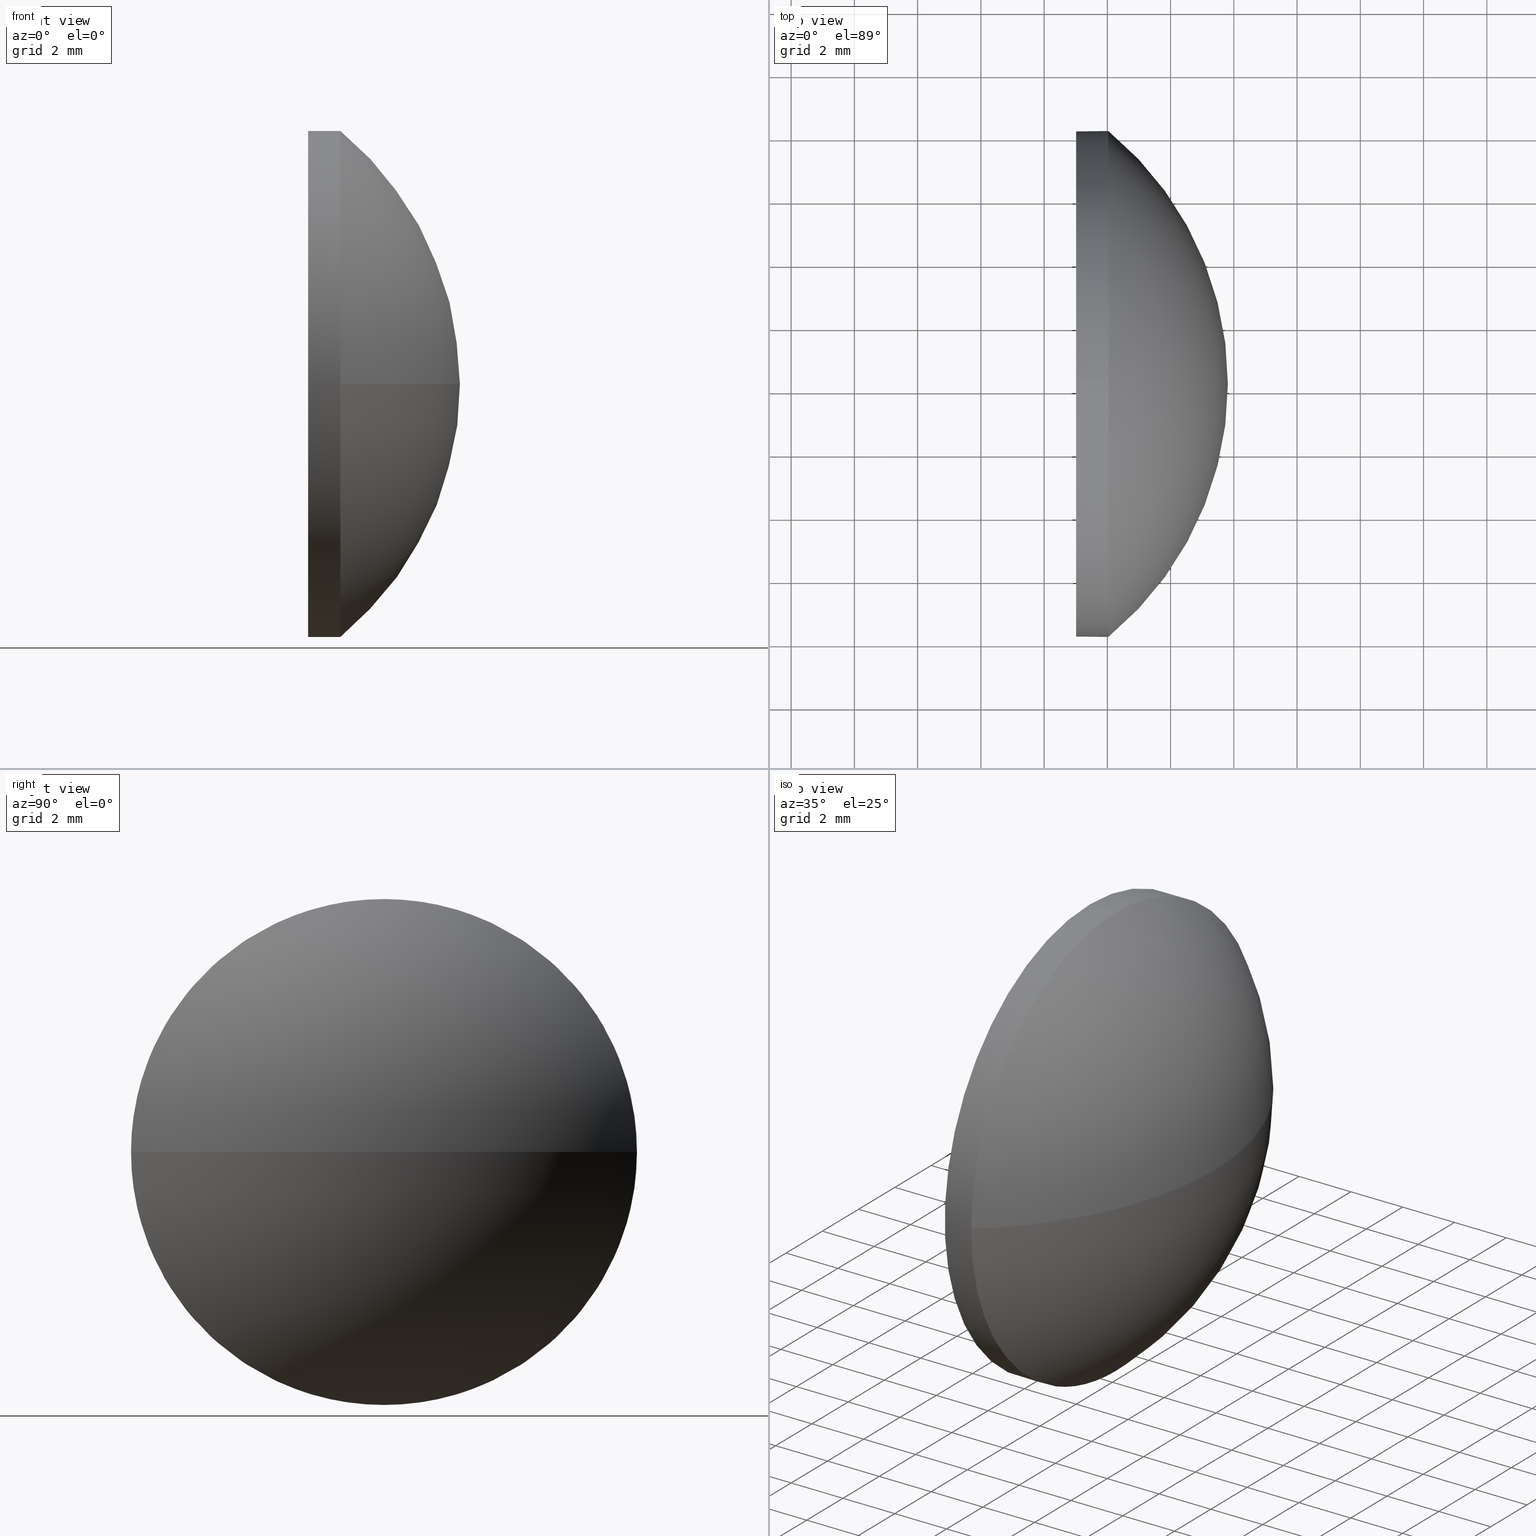
[diagram: canonical four-view strip — front | top / right | iso, engineering-drawing reading convention]
A machine part, canonical four-view strip (front | top / right | iso — engineering-drawing reading convention). The complete STEP part file that produces these views, byte-faithful:
ISO-10303-21;
HEADER;
FILE_DESCRIPTION (( 'STEP AP214' ),
    '1' );
FILE_NAME ('100197.STEP',
    '2019-05-22T06:11:40',
    ( '' ),
    ( '' ),
    'SwSTEP 2.0',
    'SolidWorks 2016',
    '' );
FILE_SCHEMA (( 'AUTOMOTIVE_DESIGN' ));
ENDSEC;

DATA;
#1 = AXIS2_PLACEMENT_3D ( 'NONE', #5, #47, #118 ) ;
#2 = EDGE_CURVE ( 'NONE', #106, #20, #107, .T. ) ;
#3 = DIRECTION ( 'NONE',  ( -1.000000000000000000, -0.0000000000000000000, -0.0000000000000000000 ) ) ;
#4 = CARTESIAN_POINT ( 'NONE',  ( 378.0321735062485100, 0.1662147536938291500, 9.797174393178831600E-016 ) ) ;
#5 = CARTESIAN_POINT ( 'NONE',  ( 375.3642010332570200, -7.833785246306179700, 0.0000000000000000000 ) ) ;
#6 = SURFACE_STYLE_FILL_AREA ( #71 ) ;
#7 = DIRECTION ( 'NONE',  ( 1.000000000000000000, 0.0000000000000000000, 0.0000000000000000000 ) ) ;
#8 = CARTESIAN_POINT ( 'NONE',  ( 378.0321735062485100, -7.833785246306179700, 0.0000000000000000000 ) ) ;
#9 = CARTESIAN_POINT ( 'NONE',  ( 378.0321735062485100, -7.833785246306179700, 0.0000000000000000000 ) ) ;
#10 = EDGE_CURVE ( 'NONE', #98, #104, #129, .T. ) ;
#11 = AXIS2_PLACEMENT_3D ( 'NONE', #92, #162, #81 ) ;
#12 = FACE_OUTER_BOUND ( 'NONE', #167, .T. ) ;
#13 = PRESENTATION_STYLE_ASSIGNMENT (( #154 ) ) ;
#14 = FACE_OUTER_BOUND ( 'NONE', #62, .T. ) ;
#15 = ORIENTED_EDGE ( 'NONE', *, *, #2, .T. ) ;
#16 = FILL_AREA_STYLE ('',( #144 ) ) ;
#17 = CIRCLE ( 'NONE', #29, 8.000000000000001800 ) ;
#18 = CARTESIAN_POINT ( 'NONE',  ( 378.0321735062485100, -15.83378524630618300, 0.0000000000000000000 ) ) ;
#19 = APPLICATION_CONTEXT ( 'automotive_design' ) ;
#20 = VERTEX_POINT ( 'NONE', #119 ) ;
#21 = EDGE_CURVE ( 'NONE', #106, #104, #100, .T. ) ;
#22 = STYLED_ITEM ( 'NONE', ( #50 ), #44 ) ;
#23 = DIRECTION ( 'NONE',  ( -1.000000000000000000, -0.0000000000000000000, -0.0000000000000000000 ) ) ;
#24 = CARTESIAN_POINT ( 'NONE',  ( 371.4565650406399900, -7.833785246306176100, 0.0000000000000000000 ) ) ;
#25 = DIRECTION ( 'NONE',  ( 0.0000000000000000000, 0.0000000000000000000, 1.000000000000000000 ) ) ;
#26 = ADVANCED_FACE ( 'NONE', ( #123 ), #63, .F. ) ;
#27 = DIRECTION ( 'NONE',  ( 0.0000000000000000000, -1.000000000000000000, 0.0000000000000000000 ) ) ;
#28 = ORIENTED_EDGE ( 'NONE', *, *, #180, .T. ) ;
#29 = AXIS2_PLACEMENT_3D ( 'NONE', #9, #68, #122 ) ;
#30 = FACE_OUTER_BOUND ( 'NONE', #125, .T. ) ;
#31 = EDGE_CURVE ( 'NONE', #138, #106, #60, .T. ) ;
#32 = ORIENTED_EDGE ( 'NONE', *, *, #158, .F. ) ;
#33 = AXIS2_PLACEMENT_3D ( 'NONE', #51, #160, #80 ) ;
#34 = MECHANICAL_DESIGN_GEOMETRIC_PRESENTATION_REPRESENTATION (  '', ( #22 ), #171 ) ;
#35 = DIRECTION ( 'NONE',  ( 0.0000000000000000000, -1.000000000000000000, -1.224646799147353500E-016 ) ) ;
#36 = CLOSED_SHELL ( 'NONE', ( #133, #39, #161, #157, #26 ) ) ;
#37 = CARTESIAN_POINT ( 'NONE',  ( 377.0121735062485300, -7.833785246306179700, 8.000000000000001800 ) ) ;
#38 = AXIS2_PLACEMENT_3D ( 'NONE', #163, #7, #109 ) ;
#39 = ADVANCED_FACE ( 'NONE', ( #58 ), #85, .T. ) ;
#40 =( NAMED_UNIT ( * ) SI_UNIT ( $, .STERADIAN. ) SOLID_ANGLE_UNIT ( ) );
#41 = EDGE_CURVE ( 'NONE', #183, #138, #17, .T. ) ;
#42 = AXIS2_PLACEMENT_3D ( 'NONE', #8, #110, #121 ) ;
#43 = COLOUR_RGB ( '',1.000000000000000000, 1.000000000000000000, 1.000000000000000000 ) ;
#44 = ADVANCED_BREP_SHAPE_REPRESENTATION ( '100197', ( #59, #86 ), #120 ) ;
#45 = DIRECTION ( 'NONE',  ( 0.0000000000000000000, -1.224646799147353200E-016, 1.000000000000000000 ) ) ;
#46 = AXIS2_PLACEMENT_3D ( 'NONE', #147, #48, #77 ) ;
#47 = DIRECTION ( 'NONE',  ( -1.000000000000000000, -0.0000000000000000000, -0.0000000000000000000 ) ) ;
#48 = DIRECTION ( 'NONE',  ( -1.000000000000000000, -0.0000000000000000000, -0.0000000000000000000 ) ) ;
#49 = EDGE_CURVE ( 'NONE', #142, #20, #136, .T. ) ;
#50 = PRESENTATION_STYLE_ASSIGNMENT (( #114 ) ) ;
#51 = CARTESIAN_POINT ( 'NONE',  ( 371.4565650406399900, -7.833785246306176100, 0.0000000000000000000 ) ) ;
#52 = DIRECTION ( 'NONE',  ( 0.0000000000000000000, 0.0000000000000000000, 1.000000000000000000 ) ) ;
#53 = DIRECTION ( 'NONE',  ( 0.0000000000000000000, 0.0000000000000000000, 1.000000000000000000 ) ) ;
#54 = DIRECTION ( 'NONE',  ( -1.000000000000000000, -0.0000000000000000000, -0.0000000000000000000 ) ) ;
#55 =( GEOMETRIC_REPRESENTATION_CONTEXT ( 3 ) GLOBAL_UNCERTAINTY_ASSIGNED_CONTEXT ( ( #78 ) ) GLOBAL_UNIT_ASSIGNED_CONTEXT ( ( #174, #172, #131 ) ) REPRESENTATION_CONTEXT ( 'NONE', 'WORKASPACE' ) );
#56 = VECTOR ( 'NONE', #3, 1000.000000000000000 ) ;
#57 =( LENGTH_UNIT ( ) NAMED_UNIT ( * ) SI_UNIT ( .MILLI., .METRE. ) );
#58 = FACE_OUTER_BOUND ( 'NONE', #178, .T. ) ;
#59 = MANIFOLD_SOLID_BREP ( '��ת1', #36 ) ;
#60 = CIRCLE ( 'NONE', #139, 8.000000000000001800 ) ;
#61 = PRODUCT_DEFINITION_CONTEXT ( 'detailed design', #82, 'design' ) ;
#62 = EDGE_LOOP ( 'NONE', ( #145, #140, #137, #182 ) ) ;
#63 = PLANE ( 'NONE',  #38 ) ;
#64 = CARTESIAN_POINT ( 'NONE',  ( 378.0321735062485100, -7.833785246306179700, 8.000000000000001800 ) ) ;
#65 = ORIENTED_EDGE ( 'NONE', *, *, #158, .T. ) ;
#66 = CARTESIAN_POINT ( 'NONE',  ( 371.4565650406399900, -7.833785246306176100, 0.0000000000000000000 ) ) ;
#67 = ORIENTED_EDGE ( 'NONE', *, *, #31, .T. ) ;
#68 = DIRECTION ( 'NONE',  ( -1.000000000000000000, -0.0000000000000000000, -0.0000000000000000000 ) ) ;
#69 = VECTOR ( 'NONE', #23, 1000.000000000000000 ) ;
#70 = AXIS2_PLACEMENT_3D ( 'NONE', #89, #45, #35 ) ;
#71 = FILL_AREA_STYLE ('',( #150 ) ) ;
#72 = PRODUCT ( '100197', '100197', '', ( #117 ) ) ;
#73 =( NAMED_UNIT ( * ) PLANE_ANGLE_UNIT ( ) SI_UNIT ( $, .RADIAN. ) );
#74 = ORIENTED_EDGE ( 'NONE', *, *, #2, .F. ) ;
#75 = CARTESIAN_POINT ( 'NONE',  ( 378.0321735062485100, -7.833785246306177900, -8.000000000000001800 ) ) ;
#76 = APPLICATION_PROTOCOL_DEFINITION ( 'draft international standard', 'automotive_design', 1998, #19 ) ;
#77 = DIRECTION ( 'NONE',  ( 0.0000000000000000000, 0.0000000000000000000, 1.000000000000000000 ) ) ;
#78 = UNCERTAINTY_MEASURE_WITH_UNIT (LENGTH_MEASURE( 1.000000000000000100E-005 ), #174, 'distance_accuracy_value', 'NONE');
#79 = CARTESIAN_POINT ( 'NONE',  ( 375.3642010332570200, -7.833785246306177900, -8.000000000000001800 ) ) ;
#80 = DIRECTION ( 'NONE',  ( -1.000000000000000000, 0.0000000000000000000, 0.0000000000000000000 ) ) ;
#81 = DIRECTION ( 'NONE',  ( 0.0000000000000000000, 0.0000000000000000000, 1.000000000000000000 ) ) ;
#82 = APPLICATION_CONTEXT ( 'automotive_design' ) ;
#83 = EDGE_CURVE ( 'NONE', #183, #142, #153, .T. ) ;
#84 = PRESENTATION_LAYER_ASSIGNMENT (  '', '', ( #168 ) ) ;
#85 = SPHERICAL_SURFACE ( 'NONE', #184, 10.35560846560850100 ) ;
#86 = AXIS2_PLACEMENT_3D ( 'NONE', #135, #53, #165 ) ;
#87 = CIRCLE ( 'NONE', #70, 10.35560846560850100 ) ;
#88 = PRODUCT_DEFINITION ( 'δ֪', '', #177, #61 ) ;
#89 = CARTESIAN_POINT ( 'NONE',  ( 371.4565650406399900, -7.833785246306176100, 0.0000000000000000000 ) ) ;
#90 = AXIS2_PLACEMENT_3D ( 'NONE', #181, #112, #93 ) ;
#91 = CIRCLE ( 'NONE', #90, 8.000000000000001800 ) ;
#92 = CARTESIAN_POINT ( 'NONE',  ( 377.0121735062485300, -7.833785246306179700, 0.0000000000000000000 ) ) ;
#93 = DIRECTION ( 'NONE',  ( 0.0000000000000000000, 0.0000000000000000000, 1.000000000000000000 ) ) ;
#94 = COLOUR_RGB ( '',1.000000000000000000, 1.000000000000000000, 1.000000000000000000 ) ;
#95 = UNCERTAINTY_MEASURE_WITH_UNIT (LENGTH_MEASURE( 1.000000000000000100E-005 ), #57, 'distance_accuracy_value', 'NONE');
#96 = SPHERICAL_SURFACE ( 'NONE', #134, 10.35560846560850100 ) ;
#97 = SURFACE_SIDE_STYLE ('',( #6 ) ) ;
#98 = VERTEX_POINT ( 'NONE', #128 ) ;
#99 =( NAMED_UNIT ( * ) SI_UNIT ( $, .STERADIAN. ) SOLID_ANGLE_UNIT ( ) );
#100 = CIRCLE ( 'NONE', #42, 8.000000000000001800 ) ;
#101 = ORIENTED_EDGE ( 'NONE', *, *, #10, .F. ) ;
#102 = ORIENTED_EDGE ( 'NONE', *, *, #41, .T. ) ;
#103 = ORIENTED_EDGE ( 'NONE', *, *, #115, .T. ) ;
#104 = VERTEX_POINT ( 'NONE', #18 ) ;
#105 = DIRECTION ( 'NONE',  ( 0.0000000000000000000, 0.0000000000000000000, 1.000000000000000000 ) ) ;
#106 = VERTEX_POINT ( 'NONE', #75 ) ;
#107 = LINE ( 'NONE', #79, #69 ) ;
#108 = CARTESIAN_POINT ( 'NONE',  ( 375.3642010332570200, -7.833785246306179700, 0.0000000000000000000 ) ) ;
#109 = DIRECTION ( 'NONE',  ( 0.0000000000000000000, 0.0000000000000000000, -1.000000000000000000 ) ) ;
#110 = DIRECTION ( 'NONE',  ( -1.000000000000000000, -0.0000000000000000000, -0.0000000000000000000 ) ) ;
#111 = DIRECTION ( 'NONE',  ( 0.0000000000000000000, -1.000000000000000000, 0.0000000000000000000 ) ) ;
#112 = DIRECTION ( 'NONE',  ( -1.000000000000000000, -0.0000000000000000000, -0.0000000000000000000 ) ) ;
#113 = ORIENTED_EDGE ( 'NONE', *, *, #41, .F. ) ;
#114 = SURFACE_STYLE_USAGE ( .BOTH. , #97 ) ;
#115 = EDGE_CURVE ( 'NONE', #98, #138, #87, .T. ) ;
#116 = SURFACE_SIDE_STYLE ('',( #155 ) ) ;
#117 = PRODUCT_CONTEXT ( 'NONE', #19, 'mechanical' ) ;
#118 = DIRECTION ( 'NONE',  ( 0.0000000000000000000, 0.0000000000000000000, 1.000000000000000000 ) ) ;
#119 = CARTESIAN_POINT ( 'NONE',  ( 377.0121735062485300, -7.833785246306177900, -8.000000000000001800 ) ) ;
#120 =( GEOMETRIC_REPRESENTATION_CONTEXT ( 3 ) GLOBAL_UNCERTAINTY_ASSIGNED_CONTEXT ( ( #156 ) ) GLOBAL_UNIT_ASSIGNED_CONTEXT ( ( #152, #186, #99 ) ) REPRESENTATION_CONTEXT ( 'NONE', 'WORKASPACE' ) );
#121 = DIRECTION ( 'NONE',  ( 0.0000000000000000000, 0.0000000000000000000, 1.000000000000000000 ) ) ;
#122 = DIRECTION ( 'NONE',  ( 0.0000000000000000000, 0.0000000000000000000, 1.000000000000000000 ) ) ;
#123 = FACE_OUTER_BOUND ( 'NONE', #141, .T. ) ;
#124 = MECHANICAL_DESIGN_GEOMETRIC_PRESENTATION_REPRESENTATION (  '', ( #168 ), #55 ) ;
#125 = EDGE_LOOP ( 'NONE', ( #74, #173, #28, #185, #32 ) ) ;
#126 = ORIENTED_EDGE ( 'NONE', *, *, #49, .T. ) ;
#127 = PRODUCT_RELATED_PRODUCT_CATEGORY ( 'part', '', ( #72 ) ) ;
#128 = CARTESIAN_POINT ( 'NONE',  ( 381.8121735062485400, -7.833785246306176100, 0.0000000000000000000 ) ) ;
#129 = CIRCLE ( 'NONE', #33, 10.35560846560851200 ) ;
#130 = PRODUCT_DEFINITION_SHAPE ( 'NONE', 'NONE',  #88 ) ;
#131 =( NAMED_UNIT ( * ) SI_UNIT ( $, .STERADIAN. ) SOLID_ANGLE_UNIT ( ) );
#132 = ORIENTED_EDGE ( 'NONE', *, *, #49, .F. ) ;
#133 = ADVANCED_FACE ( 'NONE', ( #12 ), #159, .T. ) ;
#134 = AXIS2_PLACEMENT_3D ( 'NONE', #24, #52, #111 ) ;
#135 = CARTESIAN_POINT ( 'NONE',  ( 0.0000000000000000000, 0.0000000000000000000, 0.0000000000000000000 ) ) ;
#136 = CIRCLE ( 'NONE', #46, 8.000000000000001800 ) ;
#137 = ORIENTED_EDGE ( 'NONE', *, *, #21, .F. ) ;
#138 = VERTEX_POINT ( 'NONE', #4 ) ;
#139 = AXIS2_PLACEMENT_3D ( 'NONE', #148, #54, #149 ) ;
#140 = ORIENTED_EDGE ( 'NONE', *, *, #10, .T. ) ;
#141 = EDGE_LOOP ( 'NONE', ( #126, #65 ) ) ;
#142 = VERTEX_POINT ( 'NONE', #37 ) ;
#143 = AXIS2_PLACEMENT_3D ( 'NONE', #108, #146, #105 ) ;
#144 = FILL_AREA_STYLE_COLOUR ( '', #94 ) ;
#145 = ORIENTED_EDGE ( 'NONE', *, *, #115, .F. ) ;
#146 = DIRECTION ( 'NONE',  ( -1.000000000000000000, -0.0000000000000000000, -0.0000000000000000000 ) ) ;
#147 = CARTESIAN_POINT ( 'NONE',  ( 377.0121735062485300, -7.833785246306179700, 0.0000000000000000000 ) ) ;
#148 = CARTESIAN_POINT ( 'NONE',  ( 378.0321735062485100, -7.833785246306179700, 0.0000000000000000000 ) ) ;
#149 = DIRECTION ( 'NONE',  ( 0.0000000000000000000, 0.0000000000000000000, 1.000000000000000000 ) ) ;
#150 = FILL_AREA_STYLE_COLOUR ( '', #43 ) ;
#151 = PRESENTATION_LAYER_ASSIGNMENT (  '', '', ( #22 ) ) ;
#152 =( LENGTH_UNIT ( ) NAMED_UNIT ( * ) SI_UNIT ( .MILLI., .METRE. ) );
#153 = LINE ( 'NONE', #176, #56 ) ;
#154 = SURFACE_STYLE_USAGE ( .BOTH. , #116 ) ;
#155 = SURFACE_STYLE_FILL_AREA ( #16 ) ;
#156 = UNCERTAINTY_MEASURE_WITH_UNIT (LENGTH_MEASURE( 1.000000000000000100E-005 ), #152, 'distance_accuracy_value', 'NONE');
#157 = ADVANCED_FACE ( 'NONE', ( #30 ), #170, .T. ) ;
#158 = EDGE_CURVE ( 'NONE', #20, #142, #166, .T. ) ;
#159 = CYLINDRICAL_SURFACE ( 'NONE', #143, 8.000000000000001800 ) ;
#160 = DIRECTION ( 'NONE',  ( 0.0000000000000000000, 0.0000000000000000000, -1.000000000000000000 ) ) ;
#161 = ADVANCED_FACE ( 'NONE', ( #14 ), #96, .T. ) ;
#162 = DIRECTION ( 'NONE',  ( -1.000000000000000000, -0.0000000000000000000, -0.0000000000000000000 ) ) ;
#163 = CARTESIAN_POINT ( 'NONE',  ( 377.0121735062485300, -7.833785246306179700, 0.0000000000000000000 ) ) ;
#164 = SHAPE_DEFINITION_REPRESENTATION ( #130, #44 ) ;
#165 = DIRECTION ( 'NONE',  ( 1.000000000000000000, 0.0000000000000000000, 0.0000000000000000000 ) ) ;
#166 = CIRCLE ( 'NONE', #11, 8.000000000000001800 ) ;
#167 = EDGE_LOOP ( 'NONE', ( #67, #15, #132, #175, #102 ) ) ;
#168 = STYLED_ITEM ( 'NONE', ( #13 ), #59 ) ;
#169 = ORIENTED_EDGE ( 'NONE', *, *, #180, .F. ) ;
#170 = CYLINDRICAL_SURFACE ( 'NONE', #1, 8.000000000000001800 ) ;
#171 =( GEOMETRIC_REPRESENTATION_CONTEXT ( 3 ) GLOBAL_UNCERTAINTY_ASSIGNED_CONTEXT ( ( #95 ) ) GLOBAL_UNIT_ASSIGNED_CONTEXT ( ( #57, #73, #40 ) ) REPRESENTATION_CONTEXT ( 'NONE', 'WORKASPACE' ) );
#172 =( NAMED_UNIT ( * ) PLANE_ANGLE_UNIT ( ) SI_UNIT ( $, .RADIAN. ) );
#173 = ORIENTED_EDGE ( 'NONE', *, *, #21, .T. ) ;
#174 =( LENGTH_UNIT ( ) NAMED_UNIT ( * ) SI_UNIT ( .MILLI., .METRE. ) );
#175 = ORIENTED_EDGE ( 'NONE', *, *, #83, .F. ) ;
#176 = CARTESIAN_POINT ( 'NONE',  ( 375.3642010332570200, -7.833785246306179700, 8.000000000000001800 ) ) ;
#177 = PRODUCT_DEFINITION_FORMATION_WITH_SPECIFIED_SOURCE ( '�κ�', '', #72, .NOT_KNOWN. ) ;
#178 = EDGE_LOOP ( 'NONE', ( #101, #103, #113, #169 ) ) ;
#179 = APPLICATION_PROTOCOL_DEFINITION ( 'draft international standard', 'automotive_design', 1998, #82 ) ;
#180 = EDGE_CURVE ( 'NONE', #104, #183, #91, .T. ) ;
#181 = CARTESIAN_POINT ( 'NONE',  ( 378.0321735062485100, -7.833785246306179700, 0.0000000000000000000 ) ) ;
#182 = ORIENTED_EDGE ( 'NONE', *, *, #31, .F. ) ;
#183 = VERTEX_POINT ( 'NONE', #64 ) ;
#184 = AXIS2_PLACEMENT_3D ( 'NONE', #66, #25, #27 ) ;
#185 = ORIENTED_EDGE ( 'NONE', *, *, #83, .T. ) ;
#186 =( NAMED_UNIT ( * ) PLANE_ANGLE_UNIT ( ) SI_UNIT ( $, .RADIAN. ) );
ENDSEC;
END-ISO-10303-21;
